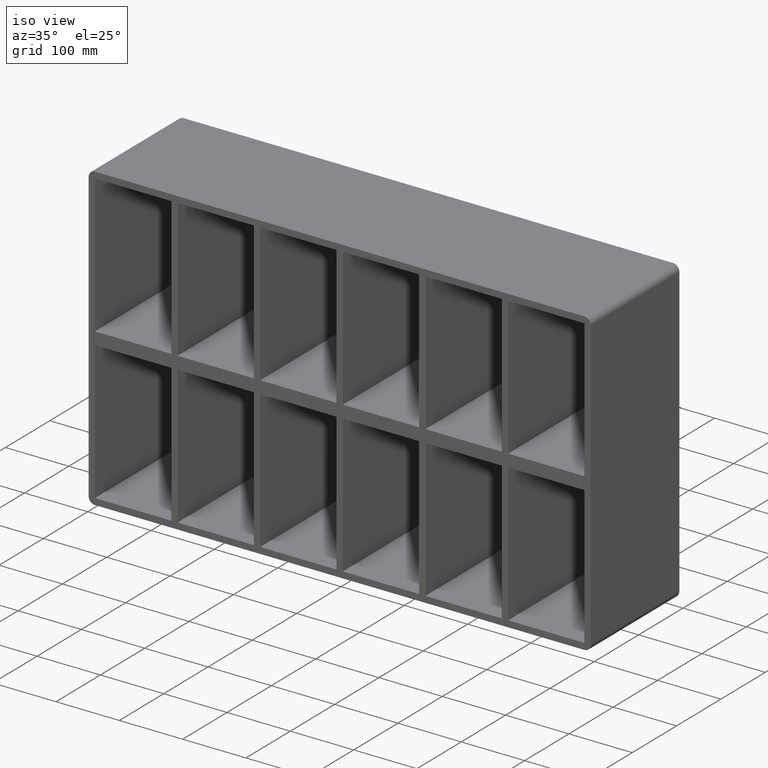
[diagram: clean part render]
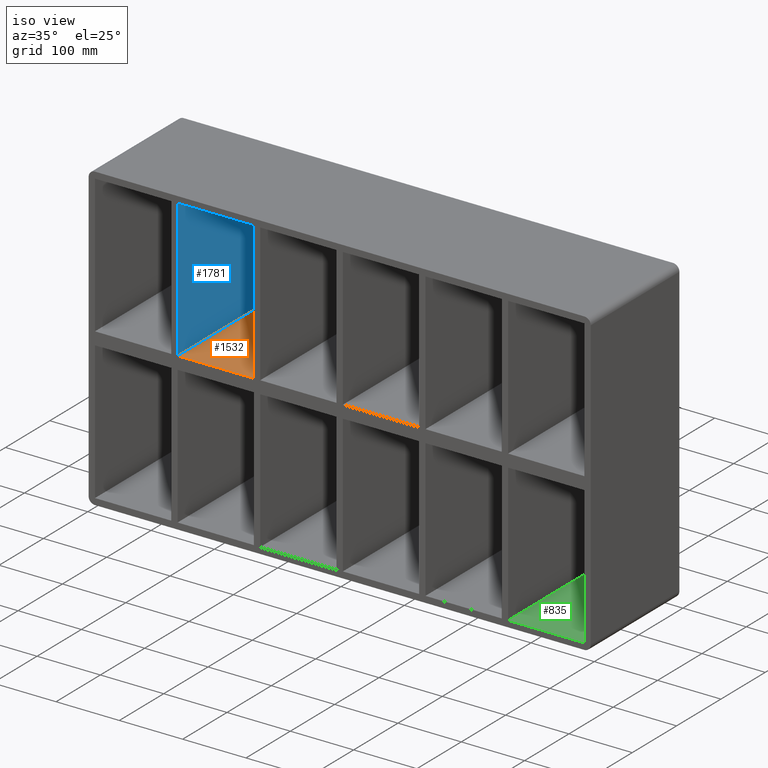
[diagram: same view with three faces highlighted in distinct colors, each labeled with its STEP entity id]
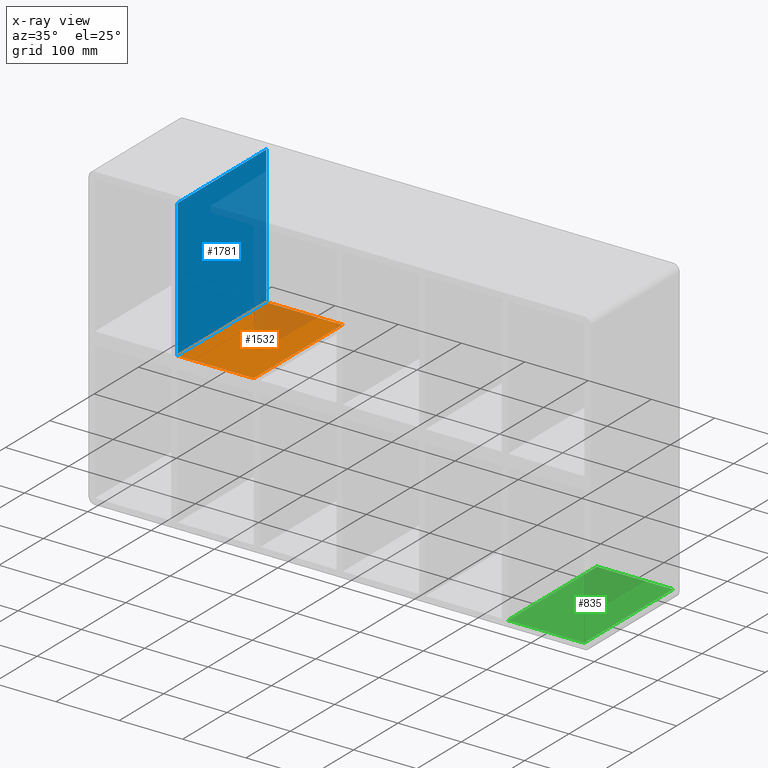
[diagram: x-ray of the same camera — body ghosted, the three highlighted faces saturated]
A machine part, iso view with three faces highlighted in distinct colors.
The next image is the same camera in x-ray (body ghosted, the three faces saturated) — at least one of them is partly hidden behind the body in this view.
Their STEP definitions:

[orange] entity #1532 — the highlighted planar face has unit normal (0, 0, 1).
#553=CARTESIAN_POINT('',(-135.50000000000125,-3.0,10.0));
#554=VERTEX_POINT('',#553);
#555=CARTESIAN_POINT('',(-135.50000000000125,197.0,10.0));
#556=VERTEX_POINT('',#555);
#557=CARTESIAN_POINT('',(-135.50000000000122,-3.0,10.0));
#558=DIRECTION('',(0.0,1.0,0.0));
#559=VECTOR('',#558,200.0);
#560=LINE('',#557,#559);
#561=EDGE_CURVE('',#554,#556,#560,.T.);
#1010=CARTESIAN_POINT('',(-255.99999999998545,-3.0,10.0));
#1011=VERTEX_POINT('',#1010);
#1012=CARTESIAN_POINT('',(-255.99999999998545,-3.0,10.0));
#1013=DIRECTION('',(1.0,0.0,0.0));
#1014=VECTOR('',#1013,120.4999999999842);
#1015=LINE('',#1012,#1014);
#1016=EDGE_CURVE('',#1011,#554,#1015,.T.);
#1499=CARTESIAN_POINT('',(-255.99999999998545,197.0,10.0));
#1500=VERTEX_POINT('',#1499);
#1507=CARTESIAN_POINT('',(-255.99999999998545,197.0,10.0));
#1508=DIRECTION('',(1.0,0.0,0.0));
#1509=VECTOR('',#1508,120.4999999999842);
#1510=LINE('',#1507,#1509);
#1511=EDGE_CURVE('',#1500,#556,#1510,.T.);
#1516=CARTESIAN_POINT('',(-386.49999999999972,-3.0,10.0));
#1517=DIRECTION('',(0.0,0.0,1.0));
#1518=DIRECTION('',(1.0,0.0,0.0));
#1519=AXIS2_PLACEMENT_3D('',#1516,#1517,#1518);
#1520=PLANE('',#1519);
#1521=ORIENTED_EDGE('',*,*,#561,.T.);
#1522=ORIENTED_EDGE('',*,*,#1511,.F.);
#1523=CARTESIAN_POINT('',(-255.99999999998545,-3.0,10.0));
#1524=DIRECTION('',(0.0,1.0,0.0));
#1525=VECTOR('',#1524,200.0);
#1526=LINE('',#1523,#1525);
#1527=EDGE_CURVE('',#1011,#1500,#1526,.T.);
#1528=ORIENTED_EDGE('',*,*,#1527,.F.);
#1529=ORIENTED_EDGE('',*,*,#1016,.T.);
#1530=EDGE_LOOP('',(#1521,#1522,#1528,#1529));
#1531=FACE_OUTER_BOUND('',#1530,.T.);
#1532=ADVANCED_FACE('',(#1531),#1520,.T.);

[blue] entity #1781 — the highlighted planar face has unit normal (1, 0, 0).
#1010=CARTESIAN_POINT('',(-255.99999999998545,-3.0,10.0));
#1011=VERTEX_POINT('',#1010);
#1018=CARTESIAN_POINT('',(-255.99999999998545,-3.0,228.00000000000006));
#1019=VERTEX_POINT('',#1018);
#1020=CARTESIAN_POINT('',(-255.99999999998545,-3.0,228.00000000000006));
#1021=DIRECTION('',(0.0,0.0,-1.0));
#1022=VECTOR('',#1021,218.00000000000006);
#1023=LINE('',#1020,#1022);
#1024=EDGE_CURVE('',#1019,#1011,#1023,.T.);
#1491=CARTESIAN_POINT('',(-255.99999999998545,197.0,228.00000000000006));
#1492=VERTEX_POINT('',#1491);
#1499=CARTESIAN_POINT('',(-255.99999999998545,197.0,10.0));
#1500=VERTEX_POINT('',#1499);
#1501=CARTESIAN_POINT('',(-255.99999999998545,197.0,228.00000000000006));
#1502=DIRECTION('',(0.0,0.0,-1.0));
#1503=VECTOR('',#1502,218.00000000000006);
#1504=LINE('',#1501,#1503);
#1505=EDGE_CURVE('',#1492,#1500,#1504,.T.);
#1523=CARTESIAN_POINT('',(-255.99999999998545,-3.0,10.0));
#1524=DIRECTION('',(0.0,1.0,0.0));
#1525=VECTOR('',#1524,200.0);
#1526=LINE('',#1523,#1525);
#1527=EDGE_CURVE('',#1011,#1500,#1526,.T.);
#1581=CARTESIAN_POINT('',(-255.99999999998545,-3.0,228.0));
#1582=DIRECTION('',(0.0,1.0,0.0));
#1583=VECTOR('',#1582,199.99999999999997);
#1584=LINE('',#1581,#1583);
#1585=EDGE_CURVE('',#1019,#1492,#1584,.T.);
#1770=CARTESIAN_POINT('',(-255.99999999998545,-3.0,228.00000000000006));
#1771=DIRECTION('',(1.0,0.0,0.0));
#1772=DIRECTION('',(0.0,0.0,-1.0));
#1773=AXIS2_PLACEMENT_3D('',#1770,#1771,#1772);
#1774=PLANE('',#1773);
#1775=ORIENTED_EDGE('',*,*,#1527,.T.);
#1776=ORIENTED_EDGE('',*,*,#1505,.F.);
#1777=ORIENTED_EDGE('',*,*,#1585,.F.);
#1778=ORIENTED_EDGE('',*,*,#1024,.T.);
#1779=EDGE_LOOP('',(#1775,#1776,#1777,#1778));
#1780=FACE_OUTER_BOUND('',#1779,.T.);
#1781=ADVANCED_FACE('',(#1780),#1774,.T.);

[green] entity #835 — the highlighted planar face has unit normal (0, 0, -1).
#203=CARTESIAN_POINT('',(266.00000000001461,-3.0,-227.99999999997044));
#204=VERTEX_POINT('',#203);
#211=CARTESIAN_POINT('',(266.00000000001461,197.0,-227.9999999999705));
#212=VERTEX_POINT('',#211);
#213=CARTESIAN_POINT('',(266.00000000001455,196.99999999999997,-228.00000000000006));
#214=DIRECTION('',(0.0,-1.0,0.0));
#215=VECTOR('',#214,199.99999999999997);
#216=LINE('',#213,#215);
#217=EDGE_CURVE('',#212,#204,#216,.T.);
#805=CARTESIAN_POINT('',(386.50000000000006,0.0,-228.00000000000006));
#806=DIRECTION('',(0.0,0.0,-1.0));
#807=DIRECTION('',(-1.0,0.0,0.0));
#808=AXIS2_PLACEMENT_3D('',#805,#806,#807);
#809=PLANE('',#808);
#810=ORIENTED_EDGE('',*,*,#217,.T.);
#811=CARTESIAN_POINT('',(386.50000000000006,-3.0,-228.00000000000006));
#812=VERTEX_POINT('',#811);
#813=CARTESIAN_POINT('',(386.50000000000006,-3.0,-228.00000000000006));
#814=DIRECTION('',(-1.0,0.0,0.0));
#815=VECTOR('',#814,120.49999999998545);
#816=LINE('',#813,#815);
#817=EDGE_CURVE('',#812,#204,#816,.T.);
#818=ORIENTED_EDGE('',*,*,#817,.F.);
#819=CARTESIAN_POINT('',(386.50000000000006,197.0,-228.00000000000006));
#820=VERTEX_POINT('',#819);
#821=CARTESIAN_POINT('',(386.50000000000006,197.0,-228.00000000000006));
#822=DIRECTION('',(0.0,-1.0,0.0));
#823=VECTOR('',#822,200.0);
#824=LINE('',#821,#823);
#825=EDGE_CURVE('',#820,#812,#824,.T.);
#826=ORIENTED_EDGE('',*,*,#825,.F.);
#827=CARTESIAN_POINT('',(266.00000000001461,197.0,-228.00000000000006));
#828=DIRECTION('',(1.0,0.0,0.0));
#829=VECTOR('',#828,120.49999999998545);
#830=LINE('',#827,#829);
#831=EDGE_CURVE('',#212,#820,#830,.T.);
#832=ORIENTED_EDGE('',*,*,#831,.F.);
#833=EDGE_LOOP('',(#810,#818,#826,#832));
#834=FACE_OUTER_BOUND('',#833,.T.);
#835=ADVANCED_FACE('',(#834),#809,.F.);